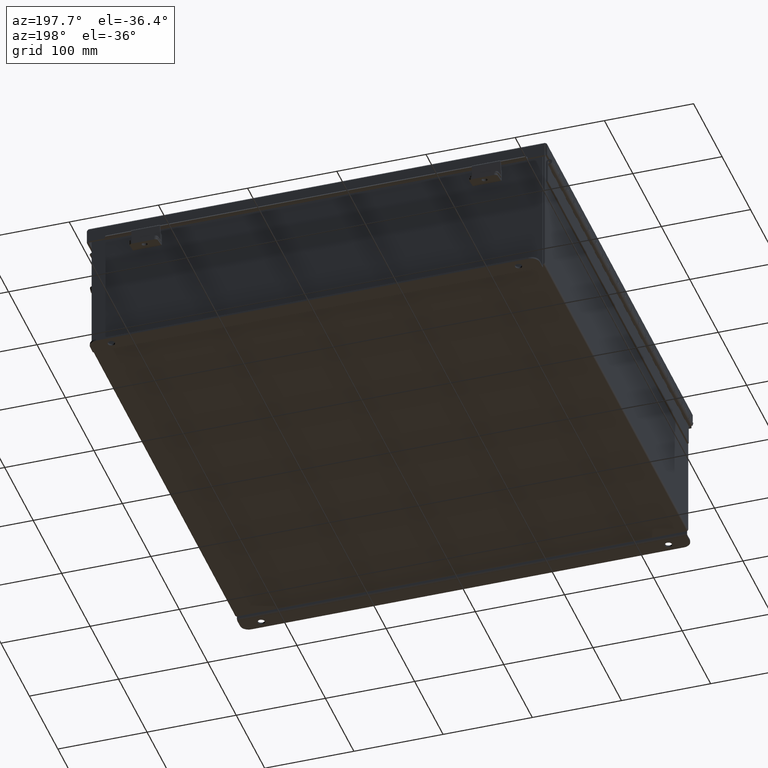
[diagram: clean part render]
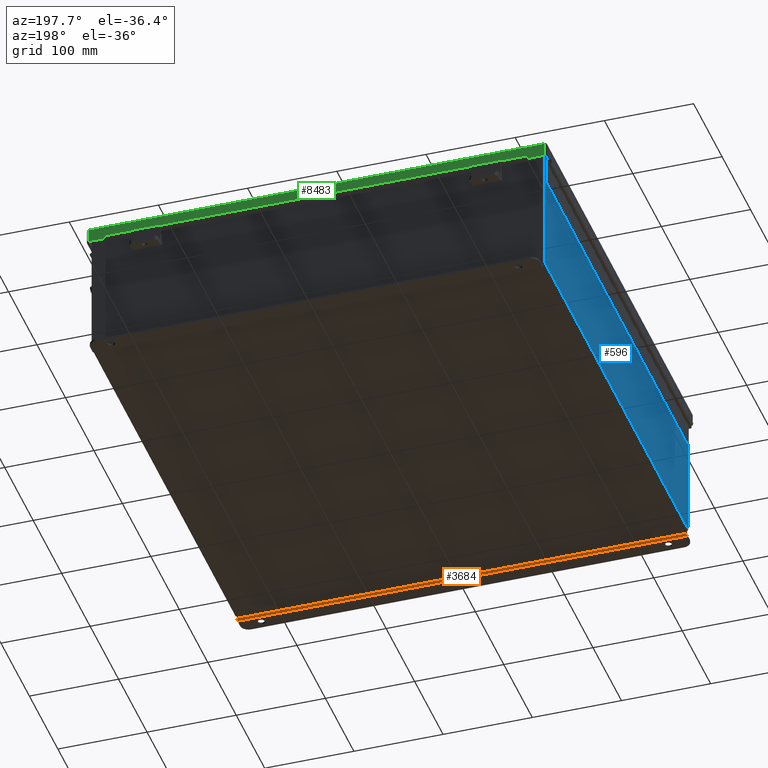
[diagram: same view with three faces highlighted in distinct colors, each labeled with its STEP entity id]
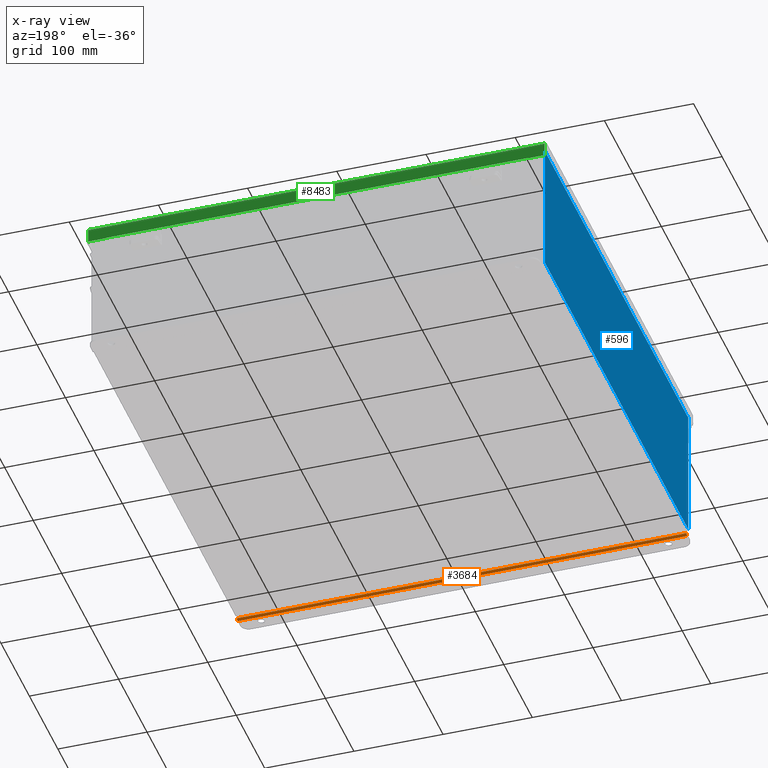
[diagram: x-ray of the same camera — body ghosted, the three highlighted faces saturated]
A machine part, auxiliary view with three faces highlighted in distinct colors.
The next image is the same camera in x-ray (body ghosted, the three faces saturated) — at least one of them is partly hidden behind the body in this view.
Their STEP definitions:

[orange] entity #3684 — the highlighted cylindrical surface (edge-blend (fillet) strip) has radius 2.2276 mm, axis along (1, 0, -0).
#719 = CARTESIAN_POINT ( 'NONE',  ( -9.925299999999996500, 0.01299999999999792100, -3.099300000000004400 ) ) ;
#1291 = LINE ( 'NONE', #15337, #5861 ) ;
#1295 = DIRECTION ( 'NONE',  ( 0.0000000000000000000, 0.0000000000000000000, 1.000000000000000000 ) ) ;
#1899 = LINE ( 'NONE', #4251, #10516 ) ;
#2447 = DIRECTION ( 'NONE',  ( -1.000000000000000000, -4.910036603141682400E-031, 0.0000000000000000000 ) ) ;
#3114 = VERTEX_POINT ( 'NONE', #7525 ) ;
#3226 = DIRECTION ( 'NONE',  ( 1.000000000000000000, 4.910036603141682400E-031, -0.0000000000000000000 ) ) ;
#3684 = ADVANCED_FACE ( 'NONE', ( #11087 ), #5923, .T. ) ;
#4171 = EDGE_CURVE ( 'NONE', #16126, #11733, #1899, .T. ) ;
#4251 = CARTESIAN_POINT ( 'NONE',  ( -9.925299999999996500, -0.07470000000000015500, -3.099299999999999900 ) ) ;
#5324 = CIRCLE ( 'NONE', #13872, 0.08770000000000026400 ) ;
#5861 = VECTOR ( 'NONE', #3226, 39.37007874015748100 ) ;
#5897 = DIRECTION ( 'NONE',  ( 0.0000000000000000000, -3.699053013085864000E-015, -1.000000000000000000 ) ) ;
#5923 = CYLINDRICAL_SURFACE ( 'NONE', #12023, 0.08770000000000026400 ) ;
#7207 = CARTESIAN_POINT ( 'NONE',  ( -9.925299999999992900, 0.01299999999999792100, -3.099300000000004400 ) ) ;
#7525 = CARTESIAN_POINT ( 'NONE',  ( 9.925300000000000000, 0.01300000000000010700, -3.187000000000000300 ) ) ;
#8953 = DIRECTION ( 'NONE',  ( 0.0000000000000000000, 0.0000000000000000000, 1.000000000000000000 ) ) ;
#10516 = VECTOR ( 'NONE', #15092, 39.37007874015748100 ) ;
#11087 = FACE_OUTER_BOUND ( 'NONE', #14317, .T. ) ;
#11623 = DIRECTION ( 'NONE',  ( 1.000000000000000000, 4.910036603141682400E-031, -0.0000000000000000000 ) ) ;
#11733 = VERTEX_POINT ( 'NONE', #14722 ) ;
#12023 = AXIS2_PLACEMENT_3D ( 'NONE', #719, #2447, #5897 ) ;
#13020 = EDGE_CURVE ( 'NONE', #15826, #3114, #1291, .T. ) ;
#13872 = AXIS2_PLACEMENT_3D ( 'NONE', #7207, #19397, #8953 ) ;
#14019 = CARTESIAN_POINT ( 'NONE',  ( -9.925299999999992900, 0.01300000000000010700, -3.187000000000004700 ) ) ;
#14317 = EDGE_LOOP ( 'NONE', ( #21244, #18621, #18236, #20775 ) ) ;
#14722 = CARTESIAN_POINT ( 'NONE',  ( 9.925300000000000000, -0.07470000000000015500, -3.099300000000004400 ) ) ;
#15092 = DIRECTION ( 'NONE',  ( 1.000000000000000000, 4.910036603141682400E-031, -0.0000000000000000000 ) ) ;
#15337 = CARTESIAN_POINT ( 'NONE',  ( 9.925300000000000000, 0.01300000000000229300, -3.187000000000000300 ) ) ;
#15439 = AXIS2_PLACEMENT_3D ( 'NONE', #22032, #11623, #1295 ) ;
#15826 = VERTEX_POINT ( 'NONE', #14019 ) ;
#16126 = VERTEX_POINT ( 'NONE', #18249 ) ;
#16276 = EDGE_CURVE ( 'NONE', #11733, #3114, #22227, .T. ) ;
#18236 = ORIENTED_EDGE ( 'NONE', *, *, #13020, .T. ) ;
#18249 = CARTESIAN_POINT ( 'NONE',  ( -9.925299999999992900, -0.07470000000000015500, -3.099299999999999900 ) ) ;
#18621 = ORIENTED_EDGE ( 'NONE', *, *, #18943, .F. ) ;
#18943 = EDGE_CURVE ( 'NONE', #15826, #16126, #5324, .T. ) ;
#19397 = DIRECTION ( 'NONE',  ( -1.000000000000000000, -4.910036603141682400E-031, 0.0000000000000000000 ) ) ;
#20775 = ORIENTED_EDGE ( 'NONE', *, *, #16276, .F. ) ;
#21244 = ORIENTED_EDGE ( 'NONE', *, *, #4171, .F. ) ;
#22032 = CARTESIAN_POINT ( 'NONE',  ( 9.925300000000000000, 0.01300000000000010700, -3.099299999999999900 ) ) ;
#22227 = CIRCLE ( 'NONE', #15439, 0.08770000000000026400 ) ;

[blue] entity #596 — the highlighted planar face has unit normal (1, 0, 0).
#42 = VERTEX_POINT ( 'NONE', #5173 ) ;
#292 = LINE ( 'NONE', #21877, #18161 ) ;
#596 = ADVANCED_FACE ( 'NONE', ( #9649 ), #19645, .F. ) ;
#605 = ORIENTED_EDGE ( 'NONE', *, *, #20651, .F. ) ;
#1057 = LINE ( 'NONE', #1088, #13780 ) ;
#1088 = CARTESIAN_POINT ( 'NONE',  ( -9.999999999999998200, 9.925300000000001800, -3.388345214641706500E-014 ) ) ;
#1983 = CARTESIAN_POINT ( 'NONE',  ( -9.999999999999998200, 9.925300000000001800, 0.01299999999999985900 ) ) ;
#2715 = DIRECTION ( 'NONE',  ( 1.000000000000000000, 0.0000000000000000000, 3.361929640444175900E-015 ) ) ;
#3201 = VERTEX_POINT ( 'NONE', #17273 ) ;
#3369 = VERTEX_POINT ( 'NONE', #10115 ) ;
#3928 = ORIENTED_EDGE ( 'NONE', *, *, #16245, .T. ) ;
#4572 = DIRECTION ( 'NONE',  ( -3.361929640444176300E-015, 3.735477378271307500E-016, 1.000000000000000000 ) ) ;
#4757 = VERTEX_POINT ( 'NONE', #1983 ) ;
#5173 = CARTESIAN_POINT ( 'NONE',  ( -9.999999999999998200, -9.925299999999992900, 0.01299999999999985900 ) ) ;
#5233 = ORIENTED_EDGE ( 'NONE', *, *, #6165, .T. ) ;
#5744 = LINE ( 'NONE', #8333, #19062 ) ;
#5745 = AXIS2_PLACEMENT_3D ( 'NONE', #19559, #2715, #16781 ) ;
#6165 = EDGE_CURVE ( 'NONE', #3369, #3201, #5744, .T. ) ;
#7659 = VECTOR ( 'NONE', #13167, 39.37007874015748100 ) ;
#8333 = CARTESIAN_POINT ( 'NONE',  ( -10.00000000000001800, -9.925299999999992900, 5.837599999999999200 ) ) ;
#9329 = EDGE_LOOP ( 'NONE', ( #5233, #18175, #605, #3928 ) ) ;
#9649 = FACE_OUTER_BOUND ( 'NONE', #9329, .T. ) ;
#10115 = CARTESIAN_POINT ( 'NONE',  ( -10.00000000000001800, -9.925299999999991100, 5.837599999999999200 ) ) ;
#12329 = LINE ( 'NONE', #13095, #7659 ) ;
#12639 = DIRECTION ( 'NONE',  ( 0.0000000000000000000, 1.000000000000000000, 0.0000000000000000000 ) ) ;
#13095 = CARTESIAN_POINT ( 'NONE',  ( -9.999999999999998200, 9.925300000000001800, 0.01299999999999985900 ) ) ;
#13167 = DIRECTION ( 'NONE',  ( -0.0000000000000000000, 1.000000000000000000, -0.0000000000000000000 ) ) ;
#13780 = VECTOR ( 'NONE', #16665, 39.37007874015748100 ) ;
#16245 = EDGE_CURVE ( 'NONE', #42, #3369, #292, .T. ) ;
#16665 = DIRECTION ( 'NONE',  ( 3.361929640444176300E-015, 0.0000000000000000000, -1.000000000000000000 ) ) ;
#16781 = DIRECTION ( 'NONE',  ( 3.361929640444175900E-015, 0.0000000000000000000, -1.000000000000000000 ) ) ;
#17273 = CARTESIAN_POINT ( 'NONE',  ( -10.00000000000001800, 9.925300000000001800, 5.837599999999999200 ) ) ;
#17513 = EDGE_CURVE ( 'NONE', #3201, #4757, #1057, .T. ) ;
#18161 = VECTOR ( 'NONE', #4572, 39.37007874015748100 ) ;
#18175 = ORIENTED_EDGE ( 'NONE', *, *, #17513, .T. ) ;
#19062 = VECTOR ( 'NONE', #12639, 39.37007874015748100 ) ;
#19559 = CARTESIAN_POINT ( 'NONE',  ( -9.999999999999998200, 0.0000000000000000000, -3.388345214641706500E-014 ) ) ;
#19645 = PLANE ( 'NONE',  #5745 ) ;
#20651 = EDGE_CURVE ( 'NONE', #42, #4757, #12329, .T. ) ;
#21877 = CARTESIAN_POINT ( 'NONE',  ( -9.999999999999998200, -9.925299999999998200, -3.016984628002970700E-014 ) ) ;

[green] entity #8483 — the highlighted planar face has unit normal (-0, -1, -0).
#391 = VERTEX_POINT ( 'NONE', #17306 ) ;
#544 = DIRECTION ( 'NONE',  ( 1.000000000000000000, 3.215975411700707400E-030, -0.0000000000000000000 ) ) ;
#1101 = VECTOR ( 'NONE', #19642, 39.37007874015748100 ) ;
#1188 = DIRECTION ( 'NONE',  ( 1.000000000000000000, 3.215538059845590000E-030, 3.362274453740340600E-018 ) ) ;
#2407 = LINE ( 'NONE', #5095, #6420 ) ;
#2684 = VERTEX_POINT ( 'NONE', #13775 ) ;
#2788 = EDGE_CURVE ( 'NONE', #2684, #391, #17091, .T. ) ;
#3409 = DIRECTION ( 'NONE',  ( -7.009925220120437100E-014, 1.401985044024085400E-013, 1.000000000000000000 ) ) ;
#3699 = ORIENTED_EDGE ( 'NONE', *, *, #2788, .F. ) ;
#4013 = CARTESIAN_POINT ( 'NONE',  ( 6.402768735150616900E-018, 10.15624999999998600, 0.6122999999999994000 ) ) ;
#4046 = AXIS2_PLACEMENT_3D ( 'NONE', #21005, #17575, #7162 ) ;
#4818 = CARTESIAN_POINT ( 'NONE',  ( 10.07447893218817300, 10.15624999999998600, 0.6123000000000005100 ) ) ;
#4908 = EDGE_CURVE ( 'NONE', #6332, #391, #15548, .T. ) ;
#5095 = CARTESIAN_POINT ( 'NONE',  ( -10.07447893218816400, 10.15624999999998400, -3.606039351636827200E-014 ) ) ;
#5433 = PLANE ( 'NONE',  #4046 ) ;
#5680 = LINE ( 'NONE', #4013, #1101 ) ;
#6078 = EDGE_CURVE ( 'NONE', #9529, #14949, #16588, .T. ) ;
#6289 = VECTOR ( 'NONE', #1188, 39.37007874015748100 ) ;
#6332 = VERTEX_POINT ( 'NONE', #12134 ) ;
#6420 = VECTOR ( 'NONE', #17316, 39.37007874015748100 ) ;
#6842 = CARTESIAN_POINT ( 'NONE',  ( 9.324478932188171100, 10.15624999999998600, 0.6122999999999994000 ) ) ;
#7162 = DIRECTION ( 'NONE',  ( 0.0000000000000000000, -3.569293475308532400E-015, -1.000000000000000000 ) ) ;
#7468 = CARTESIAN_POINT ( 'NONE',  ( -9.324478932188164000, 10.15624999999998400, 0.5967115427318869800 ) ) ;
#7542 = EDGE_CURVE ( 'NONE', #9529, #8722, #5680, .T. ) ;
#8085 = LINE ( 'NONE', #16808, #20915 ) ;
#8115 = DIRECTION ( 'NONE',  ( -0.0000000000000000000, 3.569293475308532400E-015, 1.000000000000000000 ) ) ;
#8483 = ADVANCED_FACE ( 'NONE', ( #20693 ), #5433, .F. ) ;
#8575 = CARTESIAN_POINT ( 'NONE',  ( 9.324478932188171100, 10.15624999999998600, 0.5967115427318793200 ) ) ;
#8722 = VERTEX_POINT ( 'NONE', #4818 ) ;
#9129 = VECTOR ( 'NONE', #9160, 39.37007874015748100 ) ;
#9160 = DIRECTION ( 'NONE',  ( -1.000000000000000000, -3.215975411700707400E-030, -0.0000000000000000000 ) ) ;
#9529 = VERTEX_POINT ( 'NONE', #10544 ) ;
#9647 = ORIENTED_EDGE ( 'NONE', *, *, #4908, .T. ) ;
#10192 = ORIENTED_EDGE ( 'NONE', *, *, #6078, .F. ) ;
#10544 = CARTESIAN_POINT ( 'NONE',  ( 9.324478932188171100, 10.15624999999998600, 0.6123000000000005100 ) ) ;
#11543 = ORIENTED_EDGE ( 'NONE', *, *, #7542, .T. ) ;
#11618 = EDGE_CURVE ( 'NONE', #14949, #2684, #13765, .T. ) ;
#11858 = LINE ( 'NONE', #19562, #15385 ) ;
#11987 = VECTOR ( 'NONE', #14641, 39.37007874015748100 ) ;
#12134 = CARTESIAN_POINT ( 'NONE',  ( -10.07447893218816400, 10.15624999999998600, 0.6123000000000080600 ) ) ;
#12497 = VECTOR ( 'NONE', #3409, 39.37007874015748100 ) ;
#12946 = ORIENTED_EDGE ( 'NONE', *, *, #17893, .F. ) ;
#13765 = LINE ( 'NONE', #21326, #9129 ) ;
#13775 = CARTESIAN_POINT ( 'NONE',  ( -9.324478932188164000, 10.15624999999998600, 0.5967115427318869800 ) ) ;
#14121 = CARTESIAN_POINT ( 'NONE',  ( 6.402768735150616900E-018, 10.15624999999998600, 0.6122999999999994000 ) ) ;
#14641 = DIRECTION ( 'NONE',  ( 7.009925220120712300E-014, -1.401985044024140700E-013, -1.000000000000000000 ) ) ;
#14949 = VERTEX_POINT ( 'NONE', #8575 ) ;
#15338 = EDGE_LOOP ( 'NONE', ( #10192, #11543, #18326, #12946, #21075, #9647, #3699, #18868 ) ) ;
#15385 = VECTOR ( 'NONE', #544, 39.37007874015748100 ) ;
#15548 = LINE ( 'NONE', #14121, #6289 ) ;
#15560 = EDGE_CURVE ( 'NONE', #19461, #8722, #8085, .T. ) ;
#16588 = LINE ( 'NONE', #6842, #11987 ) ;
#16808 = CARTESIAN_POINT ( 'NONE',  ( 10.07447893218817300, 10.15624999999998400, 0.0000000000000000000 ) ) ;
#17091 = LINE ( 'NONE', #7468, #12497 ) ;
#17306 = CARTESIAN_POINT ( 'NONE',  ( -9.324478932188165800, 10.15624999999998600, 0.6123000000000080600 ) ) ;
#17316 = DIRECTION ( 'NONE',  ( 0.0000000000000000000, 3.569293475308532400E-015, 1.000000000000000000 ) ) ;
#17575 = DIRECTION ( 'NONE',  ( -3.347543324056399800E-030, -1.000000000000000000, 3.569293475308532400E-015 ) ) ;
#17893 = EDGE_CURVE ( 'NONE', #19159, #19461, #11858, .T. ) ;
#18326 = ORIENTED_EDGE ( 'NONE', *, *, #15560, .F. ) ;
#18396 = EDGE_CURVE ( 'NONE', #19159, #6332, #2407, .T. ) ;
#18868 = ORIENTED_EDGE ( 'NONE', *, *, #11618, .F. ) ;
#19159 = VERTEX_POINT ( 'NONE', #19997 ) ;
#19461 = VERTEX_POINT ( 'NONE', #20731 ) ;
#19562 = CARTESIAN_POINT ( 'NONE',  ( 10.15625000000003900, 10.15624999999998400, 0.01299999999999901400 ) ) ;
#19642 = DIRECTION ( 'NONE',  ( 1.000000000000000000, 3.215538059845590000E-030, 3.362274453740340600E-018 ) ) ;
#19997 = CARTESIAN_POINT ( 'NONE',  ( -10.07447893218816400, 10.15624999999998400, 0.01300000000000010700 ) ) ;
#20693 = FACE_OUTER_BOUND ( 'NONE', #15338, .T. ) ;
#20731 = CARTESIAN_POINT ( 'NONE',  ( 10.07447893218817300, 10.15624999999998400, 0.01300000000000010700 ) ) ;
#20915 = VECTOR ( 'NONE', #8115, 39.37007874015748100 ) ;
#21005 = CARTESIAN_POINT ( 'NONE',  ( 0.0000000000000000000, 10.15624999999998400, -3.715313271383398100E-014 ) ) ;
#21075 = ORIENTED_EDGE ( 'NONE', *, *, #18396, .T. ) ;
#21326 = CARTESIAN_POINT ( 'NONE',  ( 9.324478932188171100, 10.15624999999998400, 0.5967115427318793200 ) ) ;